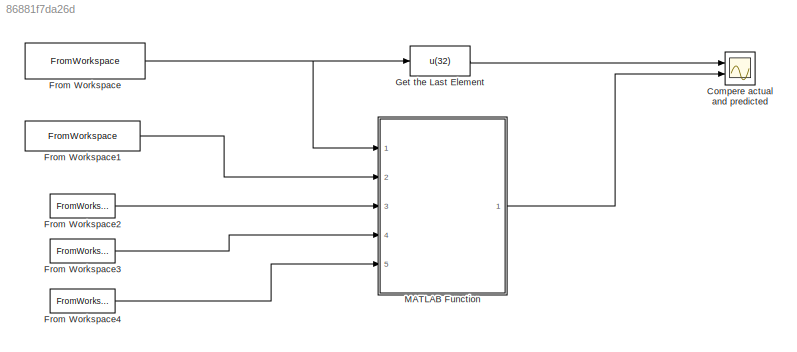
MODEL slx_86881f7da26d
KIND model
CONFIG AbsTol = auto
CONFIG EnableMultiTasking = off
CONFIG FixedStep = 1
CONFIG MaxStep = auto
CONFIG MinStep = auto
CONFIG RelTol = 1e-3
CONFIG SampleTimeConstraint = Unconstrained
CONFIG Solver = FixedStepAuto
CONFIG SolverName = FixedStepAuto
CONFIG StartTime = 1944
CONFIG StopTime = 1970
BLOCK [Scope] Compere actual and predicted
  Floating = off
  NumInputPorts = 2
  Ports = [2]
  ScopeSpecificationString = Simulink.scopes.TimeScopeBlockCfg('CurrentConfiguration', extmgr.ConfigurationSet(extmgr.Configuration('Core','General UI',true),extmgr.Configuration('Core','Source UI',true),extmgr.Configuration('Sources','WiredSimulink',true,'DataLoggingVariableName','ScopeOut','DataLogging',true,'DataLoggingSaveFormat','StructureWithTime'),extmgr.Configuration('Visuals','Time Domain',true,'SerializedDisplays',{...<+1497ch>
BLOCK [FromWorkspace] From Workspace
  VariableName = RealGNP
BLOCK [FromWorkspace] From Workspace1
  VariableName = PreRealGNP
BLOCK [FromWorkspace] From Workspace2
  VariableName = dIPI
BLOCK [FromWorkspace] From Workspace3
  VariableName = dE
BLOCK [FromWorkspace] From Workspace4
  VariableName = dWR
BLOCK [Fcn] Get the Last Element
  Expr = u(32)
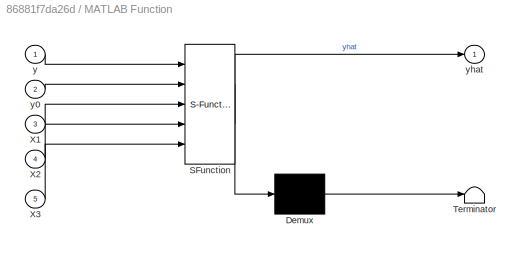
BLOCK [SubSystem] MATLAB Function
  ErrorFcn = Stateflow.Translate.translate
  PermitHierarchicalResolution = ExplicitOnly
  Ports = [5, 1]
  RequestExecContextInheritance = off
  SFBlockType = MATLAB Function
  TreatAsAtomicUnit = on
BLOCK [Demux] MATLAB Function/ Demux 
  Outputs = 1
  Ports = [1, 1]
BLOCK [S-Function] MATLAB Function/ SFunction 
  EnableBusSupport = on
  FunctionName = sf_sfun
  PortCounts = [5 2]
  Ports = [5, 2]
  SFcnIsStateOwnerBlock = off
  SFunctionDeploymentMode = off
  Tag = Stateflow S-Function 2
BLOCK [Terminator] MATLAB Function/ Terminator 
BLOCK [Inport] MATLAB Function/X1
  Port = 3
BLOCK [Inport] MATLAB Function/X2
  Port = 4
BLOCK [Inport] MATLAB Function/X3
  Port = 5
BLOCK [Inport] MATLAB Function/y
BLOCK [Inport] MATLAB Function/y0
  Port = 2
BLOCK [Outport] MATLAB Function/yhat
LINE From Workspace1:1 -> MATLAB Function:2
LINE From Workspace2:1 -> MATLAB Function:3
LINE From Workspace3:1 -> MATLAB Function:4
LINE From Workspace4:1 -> MATLAB Function:5
NET From Workspace:1 -> Get the Last Element:1, MATLAB Function:1
LINE Get the Last Element:1 -> Compere actual and predicted:1
LINE MATLAB Function:1 -> Compere actual and predicted:2
note: NET lines group one-source signal fan-out (src -> all destinations, sorted); 1:1 wires keep LINE
CHART MATLAB Function states=1 transitions=1
  STATE_LABEL 'eML_blk_kernel()'
  STATE_LABEL "SCRIPT:\nfunction yhat = ARIMAX_Predictor(y, y0, X1, X2, X3)\n\nyhat = 0; % WA because the analyzer cannot identify this data type for code generation\n\nDegree = [2,1,2];\nX = [X1,X2,X3];\ncoder.extrinsic('my_arimax_predict_fcn'); % declare extrinsic functions for code generation\nyhat = my_arimax_predict_fcn(Degree, y(1:end-1), y0, X);\n\nend\n"
CHART  states=0 transitions=0
